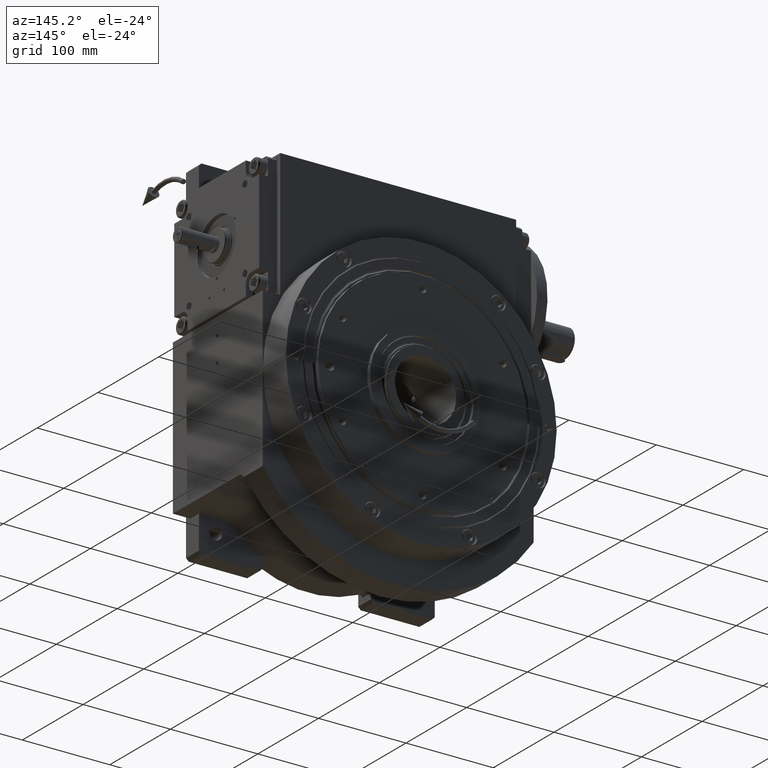
[diagram: clean part render]
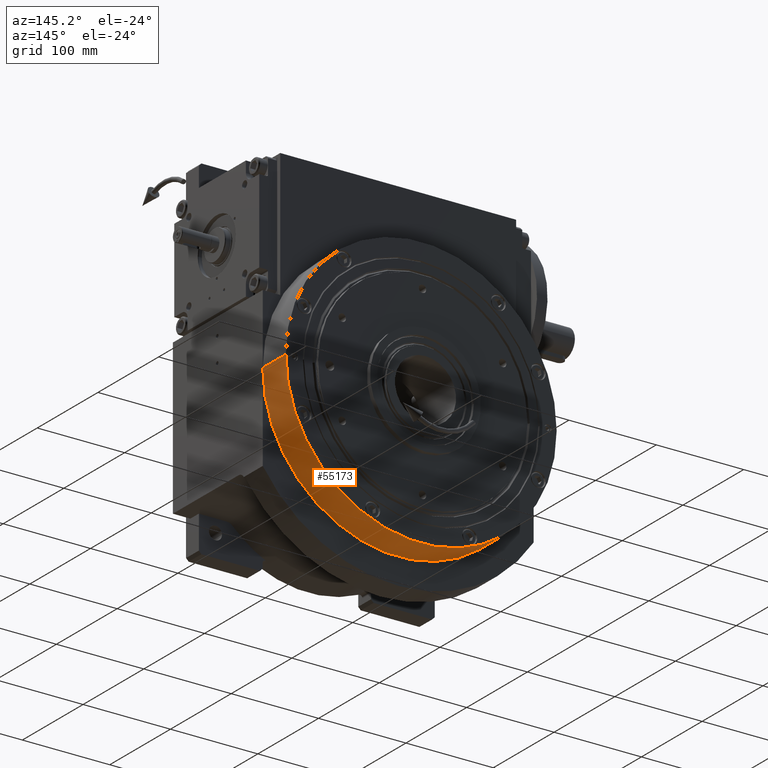
[diagram: same view with one face highlighted and labeled with its STEP entity id]
A machine part, auxiliary view. The second image highlights one B-rep face of the part: STEP entity #55173.
In plain terms, the highlighted cylindrical surface (partial cylindrical patch) has radius 155 mm, axis along (0, 1, 0).
Its self-contained STEP definition (entity closure, byte-faithful):
#5232 = CARTESIAN_POINT ( 'NONE',  ( -155.0000000000000000, 3.796342387102999398E-14, 0.000000000000000000 ) ) ;
#12550 = DIRECTION ( 'NONE',  ( 1.000000000000000000, 0.000000000000000000, 0.000000000000000000 ) ) ;
#14301 = ORIENTED_EDGE ( 'NONE', *, *, #42008, .T. ) ;
#14526 = EDGE_LOOP ( 'NONE', ( #14301, #33875, #35203, #35155 ) ) ;
#15586 = DIRECTION ( 'NONE',  ( 0.000000000000000000, 0.000000000000000000, 1.000000000000000000 ) ) ;
#15878 = AXIS2_PLACEMENT_3D ( 'NONE', #43013, #64641, #34427 ) ;
#18415 = CARTESIAN_POINT ( 'NONE',  ( 155.0000000000000000, -1.898139848424999979E-14, 0.000000000000000000 ) ) ;
#19310 = CARTESIAN_POINT ( 'NONE',  ( 155.0000000000000000, -1.898181641927000027E-14, 0.000000000000000000 ) ) ;
#20383 = AXIS2_PLACEMENT_3D ( 'NONE', #51294, #34564, #12550 ) ;
#23040 = VERTEX_POINT ( 'NONE', #18415 ) ;
#25445 = VECTOR ( 'NONE', #54628, 1000.000000000000000 ) ;
#25728 = DIRECTION ( 'NONE',  ( 1.000000000000000000, 0.000000000000000000, 0.000000000000000000 ) ) ;
#29219 = FACE_OUTER_BOUND ( 'NONE', #14526, .T. ) ;
#31428 = VERTEX_POINT ( 'NONE', #5232 ) ;
#33335 = AXIS2_PLACEMENT_3D ( 'NONE', #64071, #47422, #25728 ) ;
#33875 = ORIENTED_EDGE ( 'NONE', *, *, #61941, .F. ) ;
#34323 = VERTEX_POINT ( 'NONE', #69635 ) ;
#34427 = DIRECTION ( 'NONE',  ( 1.000000000000000000, 0.000000000000000000, 0.000000000000000000 ) ) ;
#34564 = DIRECTION ( 'NONE',  ( 0.000000000000000000, 0.000000000000000000, 1.000000000000000000 ) ) ;
#34849 = EDGE_CURVE ( 'NONE', #23040, #34323, #55921, .T. ) ;
#34920 = CYLINDRICAL_SURFACE ( 'NONE', #20383, 155.0000000000000000 ) ;
#35155 = ORIENTED_EDGE ( 'NONE', *, *, #46851, .T. ) ;
#35203 = ORIENTED_EDGE ( 'NONE', *, *, #34849, .F. ) ;
#42008 = EDGE_CURVE ( 'NONE', #31428, #43187, #58570, .T. ) ;
#43013 = CARTESIAN_POINT ( 'NONE',  ( 0.000000000000000000, 0.000000000000000000, 0.000000000000000000 ) ) ;
#43187 = VERTEX_POINT ( 'NONE', #67134 ) ;
#46851 = EDGE_CURVE ( 'NONE', #23040, #31428, #48831, .T. ) ;
#47422 = DIRECTION ( 'NONE',  ( 0.000000000000000000, 0.000000000000000000, 1.000000000000000000 ) ) ;
#48831 = CIRCLE ( 'NONE', #15878, 155.0000000000000000 ) ;
#51294 = CARTESIAN_POINT ( 'NONE',  ( 0.000000000000000000, 0.000000000000000000, 0.000000000000000000 ) ) ;
#54628 = DIRECTION ( 'NONE',  ( 0.000000000000000000, 0.000000000000000000, 1.000000000000000000 ) ) ;
#55173 = ADVANCED_FACE ( 'NONE', ( #29219 ), #34920, .T. ) ;
#55921 = LINE ( 'NONE', #19310, #25445 ) ;
#58570 = LINE ( 'NONE', #64592, #62069 ) ;
#61941 = EDGE_CURVE ( 'NONE', #34323, #43187, #62853, .T. ) ;
#62069 = VECTOR ( 'NONE', #15586, 1000.000000000000000 ) ;
#62853 = CIRCLE ( 'NONE', #33335, 155.0000000000000000 ) ;
#64071 = CARTESIAN_POINT ( 'NONE',  ( 0.000000000000000000, 0.000000000000000000, 38.00000000000000711 ) ) ;
#64592 = CARTESIAN_POINT ( 'NONE',  ( -155.0000000000000000, 1.898181641927000027E-14, 0.000000000000000000 ) ) ;
#64641 = DIRECTION ( 'NONE',  ( 0.000000000000000000, 0.000000000000000000, 1.000000000000000000 ) ) ;
#67134 = CARTESIAN_POINT ( 'NONE',  ( -155.0000000000000000, 3.796342387102999398E-14, 38.00000000000000711 ) ) ;
#69635 = CARTESIAN_POINT ( 'NONE',  ( 155.0000000000000000, -1.898139848424999979E-14, 38.00000000000000711 ) ) ;